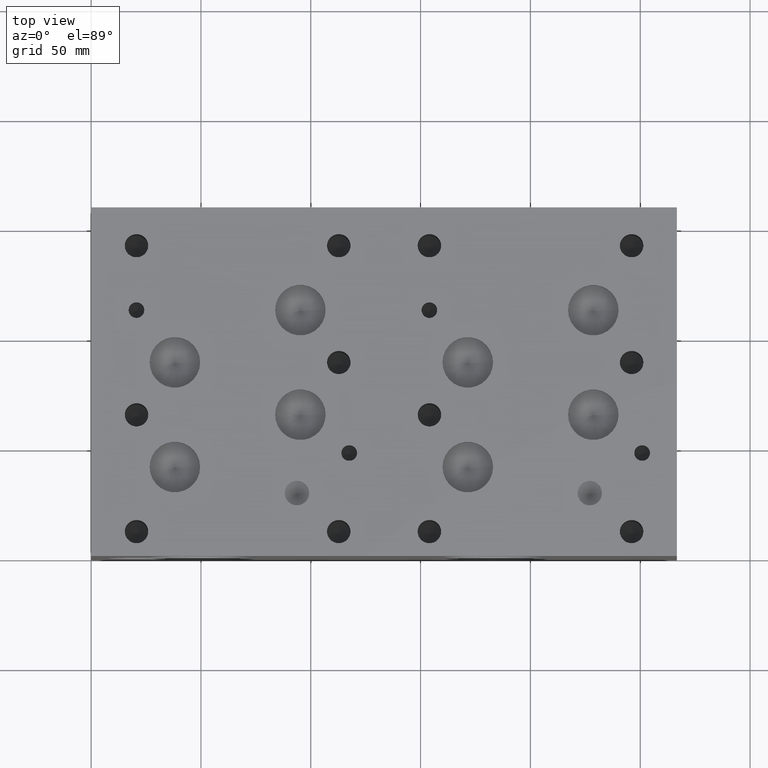
[diagram: clean part render]
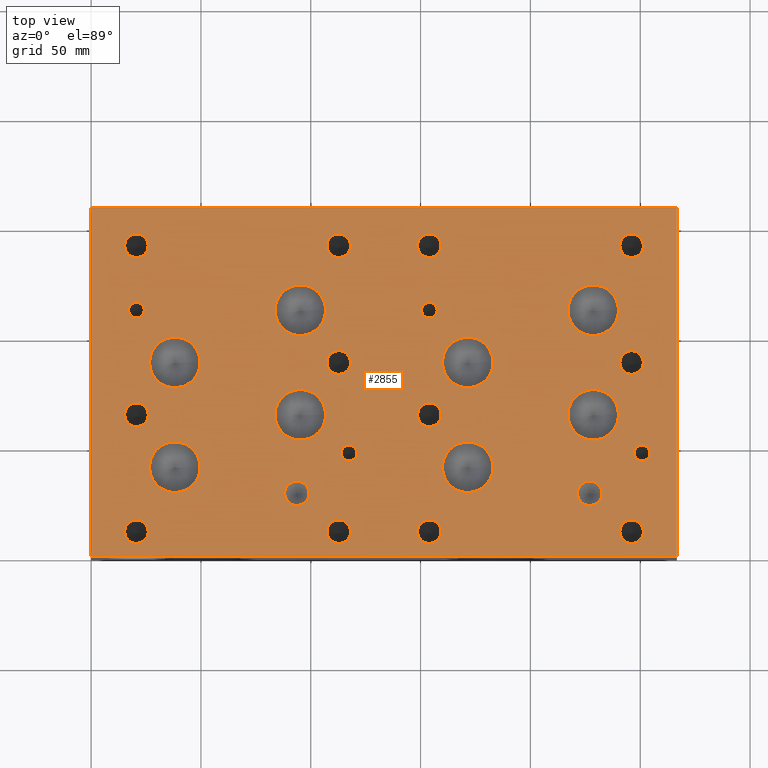
[diagram: same view with one face highlighted and labeled with its STEP entity id]
A machine part, top view. The second image highlights one B-rep face of the part: STEP entity #2855.
In plain terms, the highlighted planar face has unit normal (0, 0, 1).
Its self-contained STEP definition (entity closure, byte-faithful):
#1651=CARTESIAN_POINT('',(232.575100000000020,28.562300000000000,120.650000000000010));
#1652=VERTEX_POINT('',#1651);
#1653=CARTESIAN_POINT('',(227.012500000000020,28.562300000000000,120.650000000000010));
#1654=DIRECTION('',(0.0,0.0,-1.0));
#1655=DIRECTION('',(1.0,0.0,0.0));
#1656=AXIS2_PLACEMENT_3D('',#1653,#1654,#1655);
#1657=CIRCLE('',#1656,5.562600000000018);
#1658=EDGE_CURVE('',#1652,#1652,#1657,.T.);
#1688=CARTESIAN_POINT('',(182.968900000000020,40.449500000000000,120.650000000000010));
#1689=VERTEX_POINT('',#1688);
#1690=CARTESIAN_POINT('',(171.462700000000010,40.449500000000000,120.650000000000010));
#1691=DIRECTION('',(0.0,0.0,-1.0));
#1692=DIRECTION('',(1.0,0.0,0.0));
#1693=AXIS2_PLACEMENT_3D('',#1690,#1691,#1692);
#1694=CIRCLE('',#1693,11.506200000000000);
#1695=EDGE_CURVE('',#1689,#1689,#1694,.T.);
#1725=CARTESIAN_POINT('',(182.968900000000020,88.125300000000010,120.650000000000010));
#1726=VERTEX_POINT('',#1725);
#1727=CARTESIAN_POINT('',(171.462700000000010,88.125300000000010,120.650000000000010));
#1728=DIRECTION('',(0.0,0.0,-1.0));
#1729=DIRECTION('',(1.0,0.0,0.0));
#1730=AXIS2_PLACEMENT_3D('',#1727,#1728,#1729);
#1731=CIRCLE('',#1730,11.506200000000000);
#1732=EDGE_CURVE('',#1726,#1726,#1731,.T.);
#1762=CARTESIAN_POINT('',(240.118900000000000,111.899700000000010,120.650000000000010));
#1763=VERTEX_POINT('',#1762);
#1764=CARTESIAN_POINT('',(228.612700000000020,111.899700000000010,120.650000000000010));
#1765=DIRECTION('',(0.0,0.0,-1.0));
#1766=DIRECTION('',(1.0,0.0,0.0));
#1767=AXIS2_PLACEMENT_3D('',#1764,#1765,#1766);
#1768=CIRCLE('',#1767,11.506200000000000);
#1769=EDGE_CURVE('',#1763,#1763,#1768,.T.);
#1799=CARTESIAN_POINT('',(240.118900000000000,64.300100000000000,120.650000000000010));
#1800=VERTEX_POINT('',#1799);
#1801=CARTESIAN_POINT('',(228.612700000000020,64.300100000000000,120.650000000000010));
#1802=DIRECTION('',(0.0,0.0,-1.0));
#1803=DIRECTION('',(1.0,0.0,0.0));
#1804=AXIS2_PLACEMENT_3D('',#1801,#1802,#1803);
#1805=CIRCLE('',#1804,11.506200000000000);
#1806=EDGE_CURVE('',#1800,#1800,#1805,.T.);
#1836=CARTESIAN_POINT('',(254.406400000000020,46.850300000000004,120.650000000000010));
#1837=VERTEX_POINT('',#1836);
#1838=CARTESIAN_POINT('',(250.837700000000010,46.850300000000004,120.650000000000010));
#1839=DIRECTION('',(0.0,0.0,-1.0));
#1840=DIRECTION('',(1.0,0.0,0.0));
#1841=AXIS2_PLACEMENT_3D('',#1838,#1839,#1840);
#1842=CIRCLE('',#1841,3.568700000000007);
#1843=EDGE_CURVE('',#1837,#1837,#1842,.T.);
#1873=CARTESIAN_POINT('',(157.556200000000020,111.899700000000010,120.650000000000010));
#1874=VERTEX_POINT('',#1873);
#1875=CARTESIAN_POINT('',(153.987500000000010,111.899700000000010,120.650000000000010));
#1876=DIRECTION('',(0.0,0.0,-1.0));
#1877=DIRECTION('',(1.0,0.0,0.0));
#1878=AXIS2_PLACEMENT_3D('',#1875,#1876,#1877);
#1879=CIRCLE('',#1878,3.568700000000007);
#1880=EDGE_CURVE('',#1874,#1874,#1879,.T.);
#1910=CARTESIAN_POINT('',(159.372300000000020,64.300100000000000,120.650000000000010));
#1911=VERTEX_POINT('',#1910);
#1912=CARTESIAN_POINT('',(154.012900000000000,64.300100000000000,120.650000000000010));
#1913=DIRECTION('',(0.0,0.0,-1.0));
#1914=DIRECTION('',(1.0,0.0,0.0));
#1915=AXIS2_PLACEMENT_3D('',#1912,#1913,#1914);
#1916=CIRCLE('',#1915,5.359400000000001);
#1917=EDGE_CURVE('',#1911,#1911,#1916,.T.);
#1947=CARTESIAN_POINT('',(159.346900000000010,11.112500000000001,120.650000000000010));
#1948=VERTEX_POINT('',#1947);
#1949=CARTESIAN_POINT('',(153.987500000000010,11.112500000000001,120.650000000000010));
#1950=DIRECTION('',(0.0,0.0,-1.0));
#1951=DIRECTION('',(1.0,0.0,0.0));
#1952=AXIS2_PLACEMENT_3D('',#1949,#1950,#1951);
#1953=CIRCLE('',#1952,5.359400000000001);
#1954=EDGE_CURVE('',#1948,#1948,#1953,.T.);
#1984=CARTESIAN_POINT('',(251.421900000000020,11.112500000000001,120.650000000000010));
#1985=VERTEX_POINT('',#1984);
#1986=CARTESIAN_POINT('',(246.062500000000030,11.112500000000001,120.650000000000010));
#1987=DIRECTION('',(0.0,0.0,-1.0));
#1988=DIRECTION('',(1.0,0.0,0.0));
#1989=AXIS2_PLACEMENT_3D('',#1986,#1987,#1988);
#1990=CIRCLE('',#1989,5.359400000000001);
#1991=EDGE_CURVE('',#1985,#1985,#1990,.T.);
#2021=CARTESIAN_POINT('',(251.421900000000020,88.099900000000005,120.650000000000010));
#2022=VERTEX_POINT('',#2021);
#2023=CARTESIAN_POINT('',(246.062500000000030,88.099900000000005,120.650000000000010));
#2024=DIRECTION('',(0.0,0.0,-1.0));
#2025=DIRECTION('',(1.0,0.0,0.0));
#2026=AXIS2_PLACEMENT_3D('',#2023,#2024,#2025);
#2027=CIRCLE('',#2026,5.359400000000001);
#2028=EDGE_CURVE('',#2022,#2022,#2027,.T.);
#2058=CARTESIAN_POINT('',(251.421900000000020,141.287499999999990,120.650000000000010));
#2059=VERTEX_POINT('',#2058);
#2060=CARTESIAN_POINT('',(246.062500000000030,141.287499999999990,120.650000000000010));
#2061=DIRECTION('',(0.0,0.0,-1.0));
#2062=DIRECTION('',(1.0,0.0,0.0));
#2063=AXIS2_PLACEMENT_3D('',#2060,#2061,#2062);
#2064=CIRCLE('',#2063,5.359400000000001);
#2065=EDGE_CURVE('',#2059,#2059,#2064,.T.);
#2095=CARTESIAN_POINT('',(159.346900000000010,141.287499999999990,120.650000000000010));
#2096=VERTEX_POINT('',#2095);
#2097=CARTESIAN_POINT('',(153.987500000000010,141.287499999999990,120.650000000000010));
#2098=DIRECTION('',(0.0,0.0,-1.0));
#2099=DIRECTION('',(1.0,0.0,0.0));
#2100=AXIS2_PLACEMENT_3D('',#2097,#2098,#2099);
#2101=CIRCLE('',#2100,5.359400000000001);
#2102=EDGE_CURVE('',#2096,#2096,#2101,.T.);
#2132=CARTESIAN_POINT('',(99.231450000000024,28.582619999999999,120.650000000000010));
#2133=VERTEX_POINT('',#2132);
#2134=CARTESIAN_POINT('',(93.675200000000004,28.582619999999999,120.650000000000010));
#2135=DIRECTION('',(0.0,0.0,-1.0));
#2136=DIRECTION('',(1.0,0.0,0.0));
#2137=AXIS2_PLACEMENT_3D('',#2134,#2135,#2136);
#2138=CIRCLE('',#2137,5.556250000000009);
#2139=EDGE_CURVE('',#2133,#2133,#2138,.T.);
#2169=CARTESIAN_POINT('',(49.618900000000004,40.474899999999998,120.650000000000010));
#2170=VERTEX_POINT('',#2169);
#2171=CARTESIAN_POINT('',(38.112699999999997,40.474899999999998,120.650000000000010));
#2172=DIRECTION('',(0.0,0.0,-1.0));
#2173=DIRECTION('',(1.0,0.0,0.0));
#2174=AXIS2_PLACEMENT_3D('',#2171,#2172,#2173);
#2175=CIRCLE('',#2174,11.506200000000003);
#2176=EDGE_CURVE('',#2170,#2170,#2175,.T.);
#2206=CARTESIAN_POINT('',(49.618900000000004,88.125300000000010,120.650000000000010));
#2207=VERTEX_POINT('',#2206);
#2208=CARTESIAN_POINT('',(38.112699999999997,88.125300000000010,120.650000000000010));
#2209=DIRECTION('',(0.0,0.0,-1.0));
#2210=DIRECTION('',(1.0,0.0,0.0));
#2211=AXIS2_PLACEMENT_3D('',#2208,#2209,#2210);
#2212=CIRCLE('',#2211,11.506200000000003);
#2213=EDGE_CURVE('',#2207,#2207,#2212,.T.);
#2243=CARTESIAN_POINT('',(106.771440000000000,111.925100000000000,120.650000000000010));
#2244=VERTEX_POINT('',#2243);
#2245=CARTESIAN_POINT('',(95.262699999999995,111.925100000000000,120.650000000000010));
#2246=DIRECTION('',(0.0,0.0,-1.0));
#2247=DIRECTION('',(1.0,0.0,0.0));
#2248=AXIS2_PLACEMENT_3D('',#2245,#2246,#2247);
#2249=CIRCLE('',#2248,11.508740000000000);
#2250=EDGE_CURVE('',#2244,#2244,#2249,.T.);
#2280=CARTESIAN_POINT('',(106.771440000000000,64.300100000000000,120.650000000000010));
#2281=VERTEX_POINT('',#2280);
#2282=CARTESIAN_POINT('',(95.262699999999995,64.300100000000000,120.650000000000010));
#2283=DIRECTION('',(0.0,0.0,-1.0));
#2284=DIRECTION('',(1.0,0.0,0.0));
#2285=AXIS2_PLACEMENT_3D('',#2282,#2283,#2284);
#2286=CIRCLE('',#2285,11.508740000000000);
#2287=EDGE_CURVE('',#2281,#2281,#2286,.T.);
#2317=CARTESIAN_POINT('',(121.056400000000010,46.850300000000004,120.650000000000010));
#2318=VERTEX_POINT('',#2317);
#2319=CARTESIAN_POINT('',(117.487700000000000,46.850300000000004,120.650000000000010));
#2320=DIRECTION('',(0.0,0.0,-1.0));
#2321=DIRECTION('',(1.0,0.0,0.0));
#2322=AXIS2_PLACEMENT_3D('',#2319,#2320,#2321);
#2323=CIRCLE('',#2322,3.568700000000007);
#2324=EDGE_CURVE('',#2318,#2318,#2323,.T.);
#2354=CARTESIAN_POINT('',(24.206200000000003,111.925100000000000,120.650000000000010));
#2355=VERTEX_POINT('',#2354);
#2356=CARTESIAN_POINT('',(20.637500000000003,111.925100000000000,120.650000000000010));
#2357=DIRECTION('',(0.0,0.0,-1.0));
#2358=DIRECTION('',(1.0,0.0,0.0));
#2359=AXIS2_PLACEMENT_3D('',#2356,#2357,#2358);
#2360=CIRCLE('',#2359,3.568700000000002);
#2361=EDGE_CURVE('',#2355,#2355,#2360,.T.);
#2391=CARTESIAN_POINT('',(26.022300000000001,64.300100000000000,120.650000000000010));
#2392=VERTEX_POINT('',#2391);
#2393=CARTESIAN_POINT('',(20.662900000000000,64.300100000000000,120.650000000000010));
#2394=DIRECTION('',(0.0,0.0,-1.0));
#2395=DIRECTION('',(1.0,0.0,0.0));
#2396=AXIS2_PLACEMENT_3D('',#2393,#2394,#2395);
#2397=CIRCLE('',#2396,5.359400000000001);
#2398=EDGE_CURVE('',#2392,#2392,#2397,.T.);
#2428=CARTESIAN_POINT('',(26.009600000000002,11.120120000000000,120.650000000000010));
#2429=VERTEX_POINT('',#2428);
#2430=CARTESIAN_POINT('',(20.650200000000002,11.120120000000000,120.650000000000010));
#2431=DIRECTION('',(0.0,0.0,-1.0));
#2432=DIRECTION('',(1.0,0.0,0.0));
#2433=AXIS2_PLACEMENT_3D('',#2430,#2431,#2432);
#2434=CIRCLE('',#2433,5.359400000000001);
#2435=EDGE_CURVE('',#2429,#2429,#2434,.T.);
#2465=CARTESIAN_POINT('',(118.084599999999990,11.120120000000000,120.650000000000010));
#2466=VERTEX_POINT('',#2465);
#2467=CARTESIAN_POINT('',(112.725200000000000,11.120120000000000,120.650000000000010));
#2468=DIRECTION('',(0.0,0.0,-1.0));
#2469=DIRECTION('',(1.0,0.0,0.0));
#2470=AXIS2_PLACEMENT_3D('',#2467,#2468,#2469);
#2471=CIRCLE('',#2470,5.359400000000001);
#2472=EDGE_CURVE('',#2466,#2466,#2471,.T.);
#2502=CARTESIAN_POINT('',(118.097300000000000,88.112600000000015,120.650000000000010));
#2503=VERTEX_POINT('',#2502);
#2504=CARTESIAN_POINT('',(112.737900000000000,88.112600000000015,120.650000000000010));
#2505=DIRECTION('',(0.0,0.0,-1.0));
#2506=DIRECTION('',(1.0,0.0,0.0));
#2507=AXIS2_PLACEMENT_3D('',#2504,#2505,#2506);
#2508=CIRCLE('',#2507,5.359400000000001);
#2509=EDGE_CURVE('',#2503,#2503,#2508,.T.);
#2539=CARTESIAN_POINT('',(118.084599999999990,141.292579999999990,120.650000000000010));
#2540=VERTEX_POINT('',#2539);
#2541=CARTESIAN_POINT('',(112.725200000000000,141.292579999999990,120.650000000000010));
#2542=DIRECTION('',(0.0,0.0,-1.0));
#2543=DIRECTION('',(1.0,0.0,0.0));
#2544=AXIS2_PLACEMENT_3D('',#2541,#2542,#2543);
#2545=CIRCLE('',#2544,5.359400000000001);
#2546=EDGE_CURVE('',#2540,#2540,#2545,.T.);
#2576=CARTESIAN_POINT('',(25.996900000000004,141.287499999999990,120.650000000000010));
#2577=VERTEX_POINT('',#2576);
#2578=CARTESIAN_POINT('',(20.637500000000003,141.287499999999990,120.650000000000010));
#2579=DIRECTION('',(0.0,0.0,-1.0));
#2580=DIRECTION('',(1.0,0.0,0.0));
#2581=AXIS2_PLACEMENT_3D('',#2578,#2579,#2580);
#2582=CIRCLE('',#2581,5.359400000000001);
#2583=EDGE_CURVE('',#2577,#2577,#2582,.T.);
#2596=CARTESIAN_POINT('',(0.0,0.0,120.650000000000010));
#2597=VERTEX_POINT('',#2596);
#2598=CARTESIAN_POINT('',(0.0,158.750000000000000,120.650000000000010));
#2599=VERTEX_POINT('',#2598);
#2600=CARTESIAN_POINT('',(0.0,0.0,120.650000000000010));
#2601=DIRECTION('',(0.0,1.0,0.0));
#2602=VECTOR('',#2601,158.750000000000000);
#2603=LINE('',#2600,#2602);
#2604=EDGE_CURVE('',#2597,#2599,#2603,.T.);
#2648=CARTESIAN_POINT('',(266.700000000000050,158.750000000000000,120.650000000000010));
#2649=VERTEX_POINT('',#2648);
#2650=CARTESIAN_POINT('',(0.0,158.750000000000000,120.650000000000010));
#2651=DIRECTION('',(1.0,0.0,0.0));
#2652=VECTOR('',#2651,266.700000000000050);
#2653=LINE('',#2650,#2652);
#2654=EDGE_CURVE('',#2599,#2649,#2653,.T.);
#2679=CARTESIAN_POINT('',(266.700000000000050,0.0,120.650000000000010));
#2680=VERTEX_POINT('',#2679);
#2681=CARTESIAN_POINT('',(266.700000000000050,158.750000000000000,120.650000000000010));
#2682=DIRECTION('',(0.0,-1.0,0.0));
#2683=VECTOR('',#2682,158.750000000000000);
#2684=LINE('',#2681,#2683);
#2685=EDGE_CURVE('',#2649,#2680,#2684,.T.);
#2722=CARTESIAN_POINT('',(266.700000000000050,0.0,120.650000000000010));
#2723=DIRECTION('',(-1.0,0.0,0.0));
#2724=VECTOR('',#2723,266.700000000000050);
#2725=LINE('',#2722,#2724);
#2726=EDGE_CURVE('',#2680,#2597,#2725,.T.);
#2766=CARTESIAN_POINT('',(133.350000000000050,79.374999999999986,120.650000000000010));
#2767=DIRECTION('',(0.0,0.0,1.0));
#2768=DIRECTION('',(1.0,0.0,0.0));
#2769=AXIS2_PLACEMENT_3D('',#2766,#2767,#2768);
#2770=PLANE('',#2769);
#2771=ORIENTED_EDGE('',*,*,#2604,.F.);
#2772=ORIENTED_EDGE('',*,*,#2726,.F.);
#2773=ORIENTED_EDGE('',*,*,#2685,.F.);
#2774=ORIENTED_EDGE('',*,*,#2654,.F.);
#2775=EDGE_LOOP('',(#2771,#2772,#2773,#2774));
#2776=FACE_OUTER_BOUND('',#2775,.T.);
#2777=ORIENTED_EDGE('',*,*,#1658,.T.);
#2778=EDGE_LOOP('',(#2777));
#2779=FACE_BOUND('',#2778,.T.);
#2780=ORIENTED_EDGE('',*,*,#1695,.T.);
#2781=EDGE_LOOP('',(#2780));
#2782=FACE_BOUND('',#2781,.T.);
#2783=ORIENTED_EDGE('',*,*,#1732,.T.);
#2784=EDGE_LOOP('',(#2783));
#2785=FACE_BOUND('',#2784,.T.);
#2786=ORIENTED_EDGE('',*,*,#1769,.T.);
#2787=EDGE_LOOP('',(#2786));
#2788=FACE_BOUND('',#2787,.T.);
#2789=ORIENTED_EDGE('',*,*,#1806,.T.);
#2790=EDGE_LOOP('',(#2789));
#2791=FACE_BOUND('',#2790,.T.);
#2792=ORIENTED_EDGE('',*,*,#1843,.T.);
#2793=EDGE_LOOP('',(#2792));
#2794=FACE_BOUND('',#2793,.T.);
#2795=ORIENTED_EDGE('',*,*,#1880,.T.);
#2796=EDGE_LOOP('',(#2795));
#2797=FACE_BOUND('',#2796,.T.);
#2798=ORIENTED_EDGE('',*,*,#1917,.T.);
#2799=EDGE_LOOP('',(#2798));
#2800=FACE_BOUND('',#2799,.T.);
#2801=ORIENTED_EDGE('',*,*,#1954,.T.);
#2802=EDGE_LOOP('',(#2801));
#2803=FACE_BOUND('',#2802,.T.);
#2804=ORIENTED_EDGE('',*,*,#1991,.T.);
#2805=EDGE_LOOP('',(#2804));
#2806=FACE_BOUND('',#2805,.T.);
#2807=ORIENTED_EDGE('',*,*,#2028,.T.);
#2808=EDGE_LOOP('',(#2807));
#2809=FACE_BOUND('',#2808,.T.);
#2810=ORIENTED_EDGE('',*,*,#2065,.T.);
#2811=EDGE_LOOP('',(#2810));
#2812=FACE_BOUND('',#2811,.T.);
#2813=ORIENTED_EDGE('',*,*,#2102,.T.);
#2814=EDGE_LOOP('',(#2813));
#2815=FACE_BOUND('',#2814,.T.);
#2816=ORIENTED_EDGE('',*,*,#2139,.T.);
#2817=EDGE_LOOP('',(#2816));
#2818=FACE_BOUND('',#2817,.T.);
#2819=ORIENTED_EDGE('',*,*,#2176,.T.);
#2820=EDGE_LOOP('',(#2819));
#2821=FACE_BOUND('',#2820,.T.);
#2822=ORIENTED_EDGE('',*,*,#2213,.T.);
#2823=EDGE_LOOP('',(#2822));
#2824=FACE_BOUND('',#2823,.T.);
#2825=ORIENTED_EDGE('',*,*,#2250,.T.);
#2826=EDGE_LOOP('',(#2825));
#2827=FACE_BOUND('',#2826,.T.);
#2828=ORIENTED_EDGE('',*,*,#2287,.T.);
#2829=EDGE_LOOP('',(#2828));
#2830=FACE_BOUND('',#2829,.T.);
#2831=ORIENTED_EDGE('',*,*,#2324,.T.);
#2832=EDGE_LOOP('',(#2831));
#2833=FACE_BOUND('',#2832,.T.);
#2834=ORIENTED_EDGE('',*,*,#2361,.T.);
#2835=EDGE_LOOP('',(#2834));
#2836=FACE_BOUND('',#2835,.T.);
#2837=ORIENTED_EDGE('',*,*,#2398,.T.);
#2838=EDGE_LOOP('',(#2837));
#2839=FACE_BOUND('',#2838,.T.);
#2840=ORIENTED_EDGE('',*,*,#2435,.T.);
#2841=EDGE_LOOP('',(#2840));
#2842=FACE_BOUND('',#2841,.T.);
#2843=ORIENTED_EDGE('',*,*,#2472,.T.);
#2844=EDGE_LOOP('',(#2843));
#2845=FACE_BOUND('',#2844,.T.);
#2846=ORIENTED_EDGE('',*,*,#2509,.T.);
#2847=EDGE_LOOP('',(#2846));
#2848=FACE_BOUND('',#2847,.T.);
#2849=ORIENTED_EDGE('',*,*,#2546,.T.);
#2850=EDGE_LOOP('',(#2849));
#2851=FACE_BOUND('',#2850,.T.);
#2852=ORIENTED_EDGE('',*,*,#2583,.T.);
#2853=EDGE_LOOP('',(#2852));
#2854=FACE_BOUND('',#2853,.T.);
#2855=ADVANCED_FACE('',(#2776,#2779,#2782,#2785,#2788,#2791,#2794,#2797,#2800,#2803,#2806,#2809,#2812,#2815,#2818,#2821,#2824,#2827,#2830,#2833,#2836,#2839,#2842,#2845,#2848,#2851,#2854),#2770,.T.);